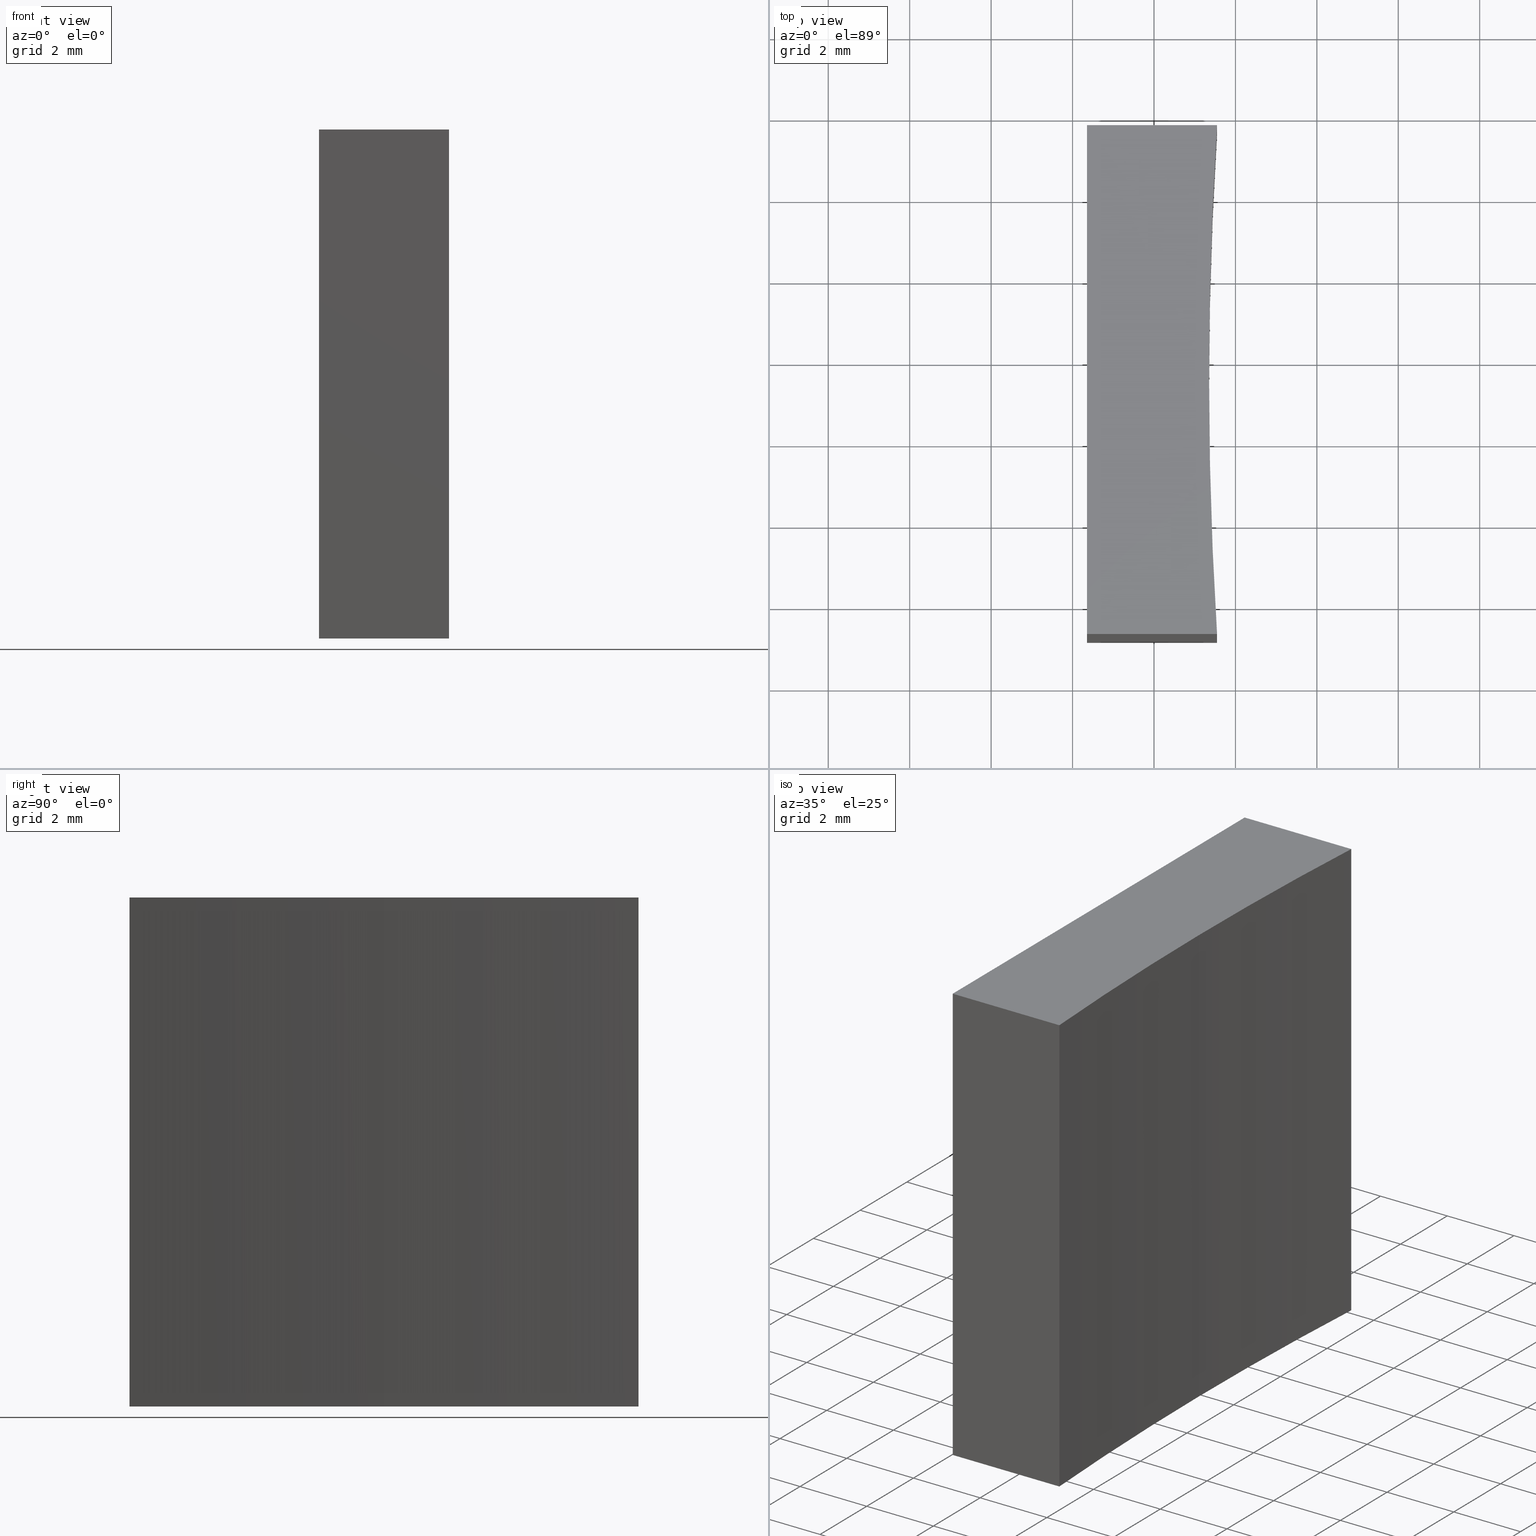
[diagram: canonical four-view strip — front | top / right | iso, engineering-drawing reading convention]
A machine part, canonical four-view strip (front | top / right | iso — engineering-drawing reading convention). The complete STEP part file that produces these views, byte-faithful:
ISO-10303-21;
HEADER;
FILE_DESCRIPTION (( 'STEP AP214' ),
    '1' );
FILE_NAME ('280006.STEP',
    '2019-08-08T01:57:53',
    ( '' ),
    ( '' ),
    'SwSTEP 2.0',
    'SolidWorks 2016',
    '' );
FILE_SCHEMA (( 'AUTOMOTIVE_DESIGN' ));
ENDSEC;

DATA;
#1 = LINE ( 'NONE', #31, #214 ) ;
#2 = DIRECTION ( 'NONE',  ( -0.0000000000000000000, -0.0000000000000000000, -1.000000000000000000 ) ) ;
#3 = CARTESIAN_POINT ( 'NONE',  ( 245.3535678156401300, 33.42896463388355200, 12.50000000000000000 ) ) ;
#4 = EDGE_CURVE ( 'NONE', #41, #110, #21, .T. ) ;
#5 = ADVANCED_BREP_SHAPE_REPRESENTATION ( '280006', ( #38, #179 ), #124 ) ;
#6 = FACE_OUTER_BOUND ( 'NONE', #199, .T. ) ;
#7 = CARTESIAN_POINT ( 'NONE',  ( 145.5490714239444400, 39.67896463388353800, 12.50000000000000000 ) ) ;
#8 = VERTEX_POINT ( 'NONE', #185 ) ;
#9 = CARTESIAN_POINT ( 'NONE',  ( 142.3535678156410400, 27.17896463388353800, 12.50000000000000000 ) ) ;
#10 = CARTESIAN_POINT ( 'NONE',  ( 142.3535678156410400, 33.42896463388353800, 0.0000000000000000000 ) ) ;
#11 = COLOUR_RGB ( '',1.000000000000000000, 1.000000000000000000, 1.000000000000000000 ) ;
#12 = PLANE ( 'NONE',  #62 ) ;
#13 = CARTESIAN_POINT ( 'NONE',  ( 0.0000000000000000000, 0.0000000000000000000, 0.0000000000000000000 ) ) ;
#14 = VECTOR ( 'NONE', #207, 1000.000000000000000 ) ;
#15 = AXIS2_PLACEMENT_3D ( 'NONE', #78, #80, #153 ) ;
#16 = FILL_AREA_STYLE_COLOUR ( '', #113 ) ;
#17 = LINE ( 'NONE', #156, #14 ) ;
#18 = MECHANICAL_DESIGN_GEOMETRIC_PRESENTATION_REPRESENTATION (  '', ( #213 ), #121 ) ;
#19 = LINE ( 'NONE', #29, #71 ) ;
#20 = EDGE_CURVE ( 'NONE', #46, #110, #55, .T. ) ;
#21 = CIRCLE ( 'NONE', #15, 100.0000000000000000 ) ;
#22 = FACE_OUTER_BOUND ( 'NONE', #106, .T. ) ;
#23 = EDGE_CURVE ( 'NONE', #75, #99, #202, .T. ) ;
#24 = CARTESIAN_POINT ( 'NONE',  ( 145.5490714239444400, 27.17896463388360200, 0.0000000000000000000 ) ) ;
#25 = PRESENTATION_LAYER_ASSIGNMENT (  '', '', ( #213 ) ) ;
#26 = ORIENTED_EDGE ( 'NONE', *, *, #36, .F. ) ;
#27 = AXIS2_PLACEMENT_3D ( 'NONE', #3, #184, #100 ) ;
#28 = DIRECTION ( 'NONE',  ( -0.0000000000000000000, -0.0000000000000000000, -1.000000000000000000 ) ) ;
#29 = CARTESIAN_POINT ( 'NONE',  ( 142.3535678156410400, 27.17896463388353800, 12.50000000000000000 ) ) ;
#30 = CIRCLE ( 'NONE', #164, 100.0000000000000000 ) ;
#31 = CARTESIAN_POINT ( 'NONE',  ( 145.5490714239444400, 27.17896463388357000, 0.0000000000000000000 ) ) ;
#32 = DIRECTION ( 'NONE',  ( 0.0000000000000000000, 0.0000000000000000000, 1.000000000000000000 ) ) ;
#33 = CARTESIAN_POINT ( 'NONE',  ( 142.3535678156410400, 27.17896463388353800, 0.0000000000000000000 ) ) ;
#34 = FACE_OUTER_BOUND ( 'NONE', #181, .T. ) ;
#35 = ORIENTED_EDGE ( 'NONE', *, *, #219, .T. ) ;
#36 = EDGE_CURVE ( 'NONE', #99, #46, #117, .T. ) ;
#37 = PRODUCT_CONTEXT ( 'NONE', #112, 'mechanical' ) ;
#38 = MANIFOLD_SOLID_BREP ( '͹̨-����1', #195 ) ;
#39 = ORIENTED_EDGE ( 'NONE', *, *, #23, .T. ) ;
#40 =( LENGTH_UNIT ( ) NAMED_UNIT ( * ) SI_UNIT ( .MILLI., .METRE. ) );
#41 = VERTEX_POINT ( 'NONE', #122 ) ;
#42 = DIRECTION ( 'NONE',  ( -0.0000000000000000000, -0.0000000000000000000, -1.000000000000000000 ) ) ;
#43 = ORIENTED_EDGE ( 'NONE', *, *, #212, .T. ) ;
#44 = EDGE_CURVE ( 'NONE', #99, #41, #198, .T. ) ;
#45 = DIRECTION ( 'NONE',  ( -0.0000000000000000000, -0.0000000000000000000, -1.000000000000000000 ) ) ;
#46 = VERTEX_POINT ( 'NONE', #61 ) ;
#47 = DIRECTION ( 'NONE',  ( -1.000000000000000000, 0.0000000000000000000, 0.0000000000000000000 ) ) ;
#48 = CARTESIAN_POINT ( 'NONE',  ( 245.3535678156401300, 33.42896463388355200, 12.50000000000000000 ) ) ;
#49 = EDGE_CURVE ( 'NONE', #59, #41, #30, .T. ) ;
#50 = DIRECTION ( 'NONE',  ( -0.0000000000000000000, -0.0000000000000000000, -1.000000000000000000 ) ) ;
#51 = LINE ( 'NONE', #144, #200 ) ;
#52 = ORIENTED_EDGE ( 'NONE', *, *, #143, .F. ) ;
#53 = PLANE ( 'NONE',  #229 ) ;
#54 =( NAMED_UNIT ( * ) PLANE_ANGLE_UNIT ( ) SI_UNIT ( $, .RADIAN. ) );
#55 = LINE ( 'NONE', #7, #238 ) ;
#56 = AXIS2_PLACEMENT_3D ( 'NONE', #203, #42, #223 ) ;
#57 = ADVANCED_FACE ( 'NONE', ( #6 ), #220, .T. ) ;
#58 = ORIENTED_EDGE ( 'NONE', *, *, #20, .F. ) ;
#59 = VERTEX_POINT ( 'NONE', #24 ) ;
#60 = UNCERTAINTY_MEASURE_WITH_UNIT (LENGTH_MEASURE( 1.000000000000000100E-005 ), #111, 'distance_accuracy_value', 'NONE');
#61 = CARTESIAN_POINT ( 'NONE',  ( 145.5490714239444400, 39.67896463388353800, 12.50000000000000000 ) ) ;
#62 = AXIS2_PLACEMENT_3D ( 'NONE', #230, #107, #228 ) ;
#63 = FACE_OUTER_BOUND ( 'NONE', #93, .T. ) ;
#64 = ORIENTED_EDGE ( 'NONE', *, *, #20, .T. ) ;
#65 = STYLED_ITEM ( 'NONE', ( #158 ), #38 ) ;
#66 = CARTESIAN_POINT ( 'NONE',  ( 145.5490714239444400, 27.17896463388360200, 12.50000000000000000 ) ) ;
#67 = DIRECTION ( 'NONE',  ( 0.0000000000000000000, 0.0000000000000000000, 1.000000000000000000 ) ) ;
#68 = DIRECTION ( 'NONE',  ( -0.0000000000000000000, -0.0000000000000000000, -1.000000000000000000 ) ) ;
#69 =( NAMED_UNIT ( * ) SI_UNIT ( $, .STERADIAN. ) SOLID_ANGLE_UNIT ( ) );
#70 = FILL_AREA_STYLE ('',( #16 ) ) ;
#71 = VECTOR ( 'NONE', #86, 1000.000000000000000 ) ;
#72 = AXIS2_PLACEMENT_3D ( 'NONE', #118, #67, #226 ) ;
#73 = ADVANCED_FACE ( 'NONE', ( #63 ), #174, .F. ) ;
#74 = LINE ( 'NONE', #192, #210 ) ;
#75 = VERTEX_POINT ( 'NONE', #66 ) ;
#76 = ADVANCED_FACE ( 'NONE', ( #105 ), #53, .F. ) ;
#77 = MECHANICAL_DESIGN_GEOMETRIC_PRESENTATION_REPRESENTATION (  '', ( #65 ), #151 ) ;
#78 = CARTESIAN_POINT ( 'NONE',  ( 245.3535678156401300, 33.42896463388355200, 0.0000000000000000000 ) ) ;
#79 = ORIENTED_EDGE ( 'NONE', *, *, #219, .F. ) ;
#80 = DIRECTION ( 'NONE',  ( -0.0000000000000000000, -0.0000000000000000000, -1.000000000000000000 ) ) ;
#81 = PRODUCT_DEFINITION_FORMATION_WITH_SPECIFIED_SOURCE ( '�κ�', '', #217, .NOT_KNOWN. ) ;
#82 = CARTESIAN_POINT ( 'NONE',  ( 145.3535678156401300, 33.42896463388355200, 12.50000000000000000 ) ) ;
#83 = CARTESIAN_POINT ( 'NONE',  ( 142.3535678156410400, 33.42896463388353800, 12.50000000000000000 ) ) ;
#84 = VERTEX_POINT ( 'NONE', #191 ) ;
#85 = DIRECTION ( 'NONE',  ( -0.0000000000000000000, -0.0000000000000000000, -1.000000000000000000 ) ) ;
#86 = DIRECTION ( 'NONE',  ( -0.0000000000000000000, -1.000000000000000000, -0.0000000000000000000 ) ) ;
#87 = AXIS2_PLACEMENT_3D ( 'NONE', #171, #68, #47 ) ;
#88 = SURFACE_STYLE_FILL_AREA ( #70 ) ;
#89 = ORIENTED_EDGE ( 'NONE', *, *, #233, .F. ) ;
#90 = CARTESIAN_POINT ( 'NONE',  ( 145.3535678156401300, 33.42896463388355200, 12.50000000000000000 ) ) ;
#91 =( NAMED_UNIT ( * ) PLANE_ANGLE_UNIT ( ) SI_UNIT ( $, .RADIAN. ) );
#92 = APPLICATION_PROTOCOL_DEFINITION ( 'draft international standard', 'automotive_design', 1998, #131 ) ;
#93 = EDGE_LOOP ( 'NONE', ( #35, #89, #211, #178 ) ) ;
#94 = VECTOR ( 'NONE', #28, 1000.000000000000000 ) ;
#95 = ORIENTED_EDGE ( 'NONE', *, *, #233, .T. ) ;
#96 = ORIENTED_EDGE ( 'NONE', *, *, #225, .F. ) ;
#97 = CYLINDRICAL_SURFACE ( 'NONE', #108, 100.0000000000000000 ) ;
#98 =( NAMED_UNIT ( * ) SI_UNIT ( $, .STERADIAN. ) SOLID_ANGLE_UNIT ( ) );
#99 = VERTEX_POINT ( 'NONE', #90 ) ;
#100 = DIRECTION ( 'NONE',  ( 1.000000000000000000, 0.0000000000000000000, 0.0000000000000000000 ) ) ;
#101 = EDGE_LOOP ( 'NONE', ( #176, #141, #231, #186 ) ) ;
#102 = CARTESIAN_POINT ( 'NONE',  ( 145.5490714239444400, 27.17896463388357000, 12.50000000000000000 ) ) ;
#103 = DIRECTION ( 'NONE',  ( 1.000000000000000000, 0.0000000000000000000, 0.0000000000000000000 ) ) ;
#104 = CARTESIAN_POINT ( 'NONE',  ( 142.3535678156410400, 39.67896463388353800, 12.50000000000000000 ) ) ;
#105 = FACE_OUTER_BOUND ( 'NONE', #148, .T. ) ;
#106 = EDGE_LOOP ( 'NONE', ( #26, #190, #227, #58 ) ) ;
#107 = DIRECTION ( 'NONE',  ( -9.771549775893063200E-015, 1.000000000000000000, 0.0000000000000000000 ) ) ;
#108 = AXIS2_PLACEMENT_3D ( 'NONE', #48, #50, #189 ) ;
#109 = VECTOR ( 'NONE', #127, 1000.000000000000000 ) ;
#110 = VERTEX_POINT ( 'NONE', #206 ) ;
#111 =( LENGTH_UNIT ( ) NAMED_UNIT ( * ) SI_UNIT ( .MILLI., .METRE. ) );
#112 = APPLICATION_CONTEXT ( 'automotive_design' ) ;
#113 = COLOUR_RGB ( '',1.000000000000000000, 1.000000000000000000, 1.000000000000000000 ) ;
#114 = VECTOR ( 'NONE', #85, 1000.000000000000000 ) ;
#115 = ORIENTED_EDGE ( 'NONE', *, *, #36, .T. ) ;
#116 = PRESENTATION_LAYER_ASSIGNMENT (  '', '', ( #65 ) ) ;
#117 = CIRCLE ( 'NONE', #56, 100.0000000000000000 ) ;
#118 = CARTESIAN_POINT ( 'NONE',  ( 245.3535678156401300, 33.42896463388355200, 12.50000000000000000 ) ) ;
#119 = DIRECTION ( 'NONE',  ( -0.0000000000000000000, -0.0000000000000000000, -1.000000000000000000 ) ) ;
#120 = ORIENTED_EDGE ( 'NONE', *, *, #167, .F. ) ;
#121 =( GEOMETRIC_REPRESENTATION_CONTEXT ( 3 ) GLOBAL_UNCERTAINTY_ASSIGNED_CONTEXT ( ( #162 ) ) GLOBAL_UNIT_ASSIGNED_CONTEXT ( ( #40, #91, #129 ) ) REPRESENTATION_CONTEXT ( 'NONE', 'WORKASPACE' ) );
#122 = CARTESIAN_POINT ( 'NONE',  ( 145.3535678156401300, 33.42896463388355200, 0.0000000000000000000 ) ) ;
#123 = DIRECTION ( 'NONE',  ( -1.000000000000000000, -0.0000000000000000000, -0.0000000000000000000 ) ) ;
#124 =( GEOMETRIC_REPRESENTATION_CONTEXT ( 3 ) GLOBAL_UNCERTAINTY_ASSIGNED_CONTEXT ( ( #60 ) ) GLOBAL_UNIT_ASSIGNED_CONTEXT ( ( #111, #54, #69 ) ) REPRESENTATION_CONTEXT ( 'NONE', 'WORKASPACE' ) );
#125 = DIRECTION ( 'NONE',  ( 0.0000000000000000000, -1.000000000000000000, 0.0000000000000000000 ) ) ;
#126 = AXIS2_PLACEMENT_3D ( 'NONE', #83, #103, #160 ) ;
#127 = DIRECTION ( 'NONE',  ( -0.0000000000000000000, -1.000000000000000000, -0.0000000000000000000 ) ) ;
#128 = DIRECTION ( 'NONE',  ( 1.000000000000000000, 9.771549775893063200E-015, -0.0000000000000000000 ) ) ;
#129 =( NAMED_UNIT ( * ) SI_UNIT ( $, .STERADIAN. ) SOLID_ANGLE_UNIT ( ) );
#130 = EDGE_LOOP ( 'NONE', ( #166, #120, #52, #95 ) ) ;
#131 = APPLICATION_CONTEXT ( 'automotive_design' ) ;
#132 = EDGE_CURVE ( 'NONE', #46, #218, #74, .T. ) ;
#133 = SURFACE_STYLE_FILL_AREA ( #221 ) ;
#134 = DIRECTION ( 'NONE',  ( 0.0000000000000000000, 0.0000000000000000000, 1.000000000000000000 ) ) ;
#135 = ADVANCED_FACE ( 'NONE', ( #147 ), #97, .F. ) ;
#136 = PRODUCT_DEFINITION_SHAPE ( 'NONE', 'NONE',  #149 ) ;
#137 = ORIENTED_EDGE ( 'NONE', *, *, #143, .T. ) ;
#138 = ORIENTED_EDGE ( 'NONE', *, *, #49, .F. ) ;
#139 = SURFACE_STYLE_USAGE ( .BOTH. , #205 ) ;
#140 = SHAPE_DEFINITION_REPRESENTATION ( #136, #5 ) ;
#141 = ORIENTED_EDGE ( 'NONE', *, *, #23, .F. ) ;
#142 = DIRECTION ( 'NONE',  ( 1.000000000000000000, 0.0000000000000000000, -0.0000000000000000000 ) ) ;
#143 = EDGE_CURVE ( 'NONE', #84, #75, #161, .T. ) ;
#144 = CARTESIAN_POINT ( 'NONE',  ( 142.3535678156410400, 39.67896463388353800, 12.50000000000000000 ) ) ;
#145 = ORIENTED_EDGE ( 'NONE', *, *, #4, .F. ) ;
#146 = EDGE_CURVE ( 'NONE', #218, #84, #19, .T. ) ;
#147 = FACE_OUTER_BOUND ( 'NONE', #101, .T. ) ;
#148 = EDGE_LOOP ( 'NONE', ( #43, #216, #183, #64 ) ) ;
#149 = PRODUCT_DEFINITION ( 'δ֪', '', #81, #201 ) ;
#150 = ORIENTED_EDGE ( 'NONE', *, *, #132, .T. ) ;
#151 =( GEOMETRIC_REPRESENTATION_CONTEXT ( 3 ) GLOBAL_UNCERTAINTY_ASSIGNED_CONTEXT ( ( #187 ) ) GLOBAL_UNIT_ASSIGNED_CONTEXT ( ( #168, #224, #98 ) ) REPRESENTATION_CONTEXT ( 'NONE', 'WORKASPACE' ) );
#152 = VECTOR ( 'NONE', #119, 1000.000000000000000 ) ;
#153 = DIRECTION ( 'NONE',  ( 1.000000000000000000, 0.0000000000000000000, 0.0000000000000000000 ) ) ;
#154 = VECTOR ( 'NONE', #128, 1000.000000000000000 ) ;
#155 = PRODUCT_RELATED_PRODUCT_CATEGORY ( 'part', '', ( #217 ) ) ;
#156 = CARTESIAN_POINT ( 'NONE',  ( 142.3535678156410400, 39.67896463388353800, 0.0000000000000000000 ) ) ;
#157 = DIRECTION ( 'NONE',  ( 0.0000000000000000000, -0.0000000000000000000, -1.000000000000000000 ) ) ;
#158 = PRESENTATION_STYLE_ASSIGNMENT (( #139 ) ) ;
#159 = CARTESIAN_POINT ( 'NONE',  ( 245.3535678156401300, 33.42896463388355200, 0.0000000000000000000 ) ) ;
#160 = DIRECTION ( 'NONE',  ( 0.0000000000000000000, 0.0000000000000000000, -1.000000000000000000 ) ) ;
#161 = LINE ( 'NONE', #102, #154 ) ;
#162 = UNCERTAINTY_MEASURE_WITH_UNIT (LENGTH_MEASURE( 1.000000000000000100E-005 ), #40, 'distance_accuracy_value', 'NONE');
#163 = ADVANCED_FACE ( 'NONE', ( #180 ), #12, .F. ) ;
#164 = AXIS2_PLACEMENT_3D ( 'NONE', #170, #2, #209 ) ;
#165 = ADVANCED_FACE ( 'NONE', ( #22 ), #235, .F. ) ;
#166 = ORIENTED_EDGE ( 'NONE', *, *, #225, .T. ) ;
#167 = EDGE_CURVE ( 'NONE', #75, #59, #194, .T. ) ;
#168 =( LENGTH_UNIT ( ) NAMED_UNIT ( * ) SI_UNIT ( .MILLI., .METRE. ) );
#169 = ORIENTED_EDGE ( 'NONE', *, *, #212, .F. ) ;
#170 = CARTESIAN_POINT ( 'NONE',  ( 245.3535678156401300, 33.42896463388355200, 0.0000000000000000000 ) ) ;
#171 = CARTESIAN_POINT ( 'NONE',  ( 245.3535678156401300, 33.42896463388355200, 12.50000000000000000 ) ) ;
#172 = LINE ( 'NONE', #10, #109 ) ;
#173 = DIRECTION ( 'NONE',  ( 1.000000000000000000, 9.771549775893063200E-015, -0.0000000000000000000 ) ) ;
#174 = PLANE ( 'NONE',  #126 ) ;
#175 = CARTESIAN_POINT ( 'NONE',  ( 142.3535678156410400, 39.67896463388353800, 12.50000000000000000 ) ) ;
#176 = ORIENTED_EDGE ( 'NONE', *, *, #44, .F. ) ;
#177 = AXIS2_PLACEMENT_3D ( 'NONE', #159, #32, #142 ) ;
#178 = ORIENTED_EDGE ( 'NONE', *, *, #239, .T. ) ;
#179 = AXIS2_PLACEMENT_3D ( 'NONE', #13, #134, #234 ) ;
#180 = FACE_OUTER_BOUND ( 'NONE', #130, .T. ) ;
#181 = EDGE_LOOP ( 'NONE', ( #96, #79, #169, #145, #138 ) ) ;
#182 = LINE ( 'NONE', #9, #94 ) ;
#183 = ORIENTED_EDGE ( 'NONE', *, *, #132, .F. ) ;
#184 = DIRECTION ( 'NONE',  ( -0.0000000000000000000, -0.0000000000000000000, -1.000000000000000000 ) ) ;
#185 = CARTESIAN_POINT ( 'NONE',  ( 142.3535678156410400, 39.67896463388353800, 0.0000000000000000000 ) ) ;
#186 = ORIENTED_EDGE ( 'NONE', *, *, #49, .T. ) ;
#187 = UNCERTAINTY_MEASURE_WITH_UNIT (LENGTH_MEASURE( 1.000000000000000100E-005 ), #168, 'distance_accuracy_value', 'NONE');
#188 = CARTESIAN_POINT ( 'NONE',  ( 145.5490714239444400, 27.17896463388360200, 12.50000000000000000 ) ) ;
#189 = DIRECTION ( 'NONE',  ( -1.000000000000000000, 0.0000000000000000000, 0.0000000000000000000 ) ) ;
#190 = ORIENTED_EDGE ( 'NONE', *, *, #44, .T. ) ;
#191 = CARTESIAN_POINT ( 'NONE',  ( 142.3535678156410400, 27.17896463388353800, 12.50000000000000000 ) ) ;
#192 = CARTESIAN_POINT ( 'NONE',  ( 142.3535678156410400, 39.67896463388353800, 12.50000000000000000 ) ) ;
#193 = SURFACE_SIDE_STYLE ('',( #88 ) ) ;
#194 = LINE ( 'NONE', #188, #114 ) ;
#195 = CLOSED_SHELL ( 'NONE', ( #165, #163, #135, #76, #73, #57, #237 ) ) ;
#196 = DIRECTION ( 'NONE',  ( -0.0000000000000000000, -0.0000000000000000000, -1.000000000000000000 ) ) ;
#197 = APPLICATION_PROTOCOL_DEFINITION ( 'draft international standard', 'automotive_design', 1998, #112 ) ;
#198 = LINE ( 'NONE', #82, #152 ) ;
#199 = EDGE_LOOP ( 'NONE', ( #236, #137, #39, #115, #150 ) ) ;
#200 = VECTOR ( 'NONE', #196, 1000.000000000000000 ) ;
#201 = PRODUCT_DEFINITION_CONTEXT ( 'detailed design', #131, 'design' ) ;
#202 = CIRCLE ( 'NONE', #27, 100.0000000000000000 ) ;
#203 = CARTESIAN_POINT ( 'NONE',  ( 245.3535678156401300, 33.42896463388355200, 12.50000000000000000 ) ) ;
#204 = FILL_AREA_STYLE_COLOUR ( '', #11 ) ;
#205 = SURFACE_SIDE_STYLE ('',( #133 ) ) ;
#206 = CARTESIAN_POINT ( 'NONE',  ( 145.5490714239444400, 39.67896463388353800, 0.0000000000000000000 ) ) ;
#207 = DIRECTION ( 'NONE',  ( -1.000000000000000000, -0.0000000000000000000, -0.0000000000000000000 ) ) ;
#208 = PLANE ( 'NONE',  #177 ) ;
#209 = DIRECTION ( 'NONE',  ( 1.000000000000000000, 0.0000000000000000000, 0.0000000000000000000 ) ) ;
#210 = VECTOR ( 'NONE', #123, 1000.000000000000000 ) ;
#211 = ORIENTED_EDGE ( 'NONE', *, *, #146, .F. ) ;
#212 = EDGE_CURVE ( 'NONE', #110, #8, #17, .T. ) ;
#213 = STYLED_ITEM ( 'NONE', ( #215 ), #5 ) ;
#214 = VECTOR ( 'NONE', #173, 1000.000000000000000 ) ;
#215 = PRESENTATION_STYLE_ASSIGNMENT (( #232 ) ) ;
#216 = ORIENTED_EDGE ( 'NONE', *, *, #239, .F. ) ;
#217 = PRODUCT ( '280006', '280006', '', ( #37 ) ) ;
#218 = VERTEX_POINT ( 'NONE', #104 ) ;
#219 = EDGE_CURVE ( 'NONE', #8, #222, #172, .T. ) ;
#220 = PLANE ( 'NONE',  #72 ) ;
#221 = FILL_AREA_STYLE ('',( #204 ) ) ;
#222 = VERTEX_POINT ( 'NONE', #33 ) ;
#223 = DIRECTION ( 'NONE',  ( 1.000000000000000000, 0.0000000000000000000, 0.0000000000000000000 ) ) ;
#224 =( NAMED_UNIT ( * ) PLANE_ANGLE_UNIT ( ) SI_UNIT ( $, .RADIAN. ) );
#225 = EDGE_CURVE ( 'NONE', #222, #59, #1, .T. ) ;
#226 = DIRECTION ( 'NONE',  ( 1.000000000000000000, 0.0000000000000000000, -0.0000000000000000000 ) ) ;
#227 = ORIENTED_EDGE ( 'NONE', *, *, #4, .T. ) ;
#228 = DIRECTION ( 'NONE',  ( -1.000000000000000000, -9.771549775893063200E-015, 0.0000000000000000000 ) ) ;
#229 = AXIS2_PLACEMENT_3D ( 'NONE', #175, #125, #157 ) ;
#230 = CARTESIAN_POINT ( 'NONE',  ( 145.5490714239444400, 27.17896463388357000, 12.50000000000000000 ) ) ;
#231 = ORIENTED_EDGE ( 'NONE', *, *, #167, .T. ) ;
#232 = SURFACE_STYLE_USAGE ( .BOTH. , #193 ) ;
#233 = EDGE_CURVE ( 'NONE', #84, #222, #182, .T. ) ;
#234 = DIRECTION ( 'NONE',  ( 1.000000000000000000, 0.0000000000000000000, 0.0000000000000000000 ) ) ;
#235 = CYLINDRICAL_SURFACE ( 'NONE', #87, 100.0000000000000000 ) ;
#236 = ORIENTED_EDGE ( 'NONE', *, *, #146, .T. ) ;
#237 = ADVANCED_FACE ( 'NONE', ( #34 ), #208, .F. ) ;
#238 = VECTOR ( 'NONE', #45, 1000.000000000000000 ) ;
#239 = EDGE_CURVE ( 'NONE', #218, #8, #51, .T. ) ;
ENDSEC;
END-ISO-10303-21;
